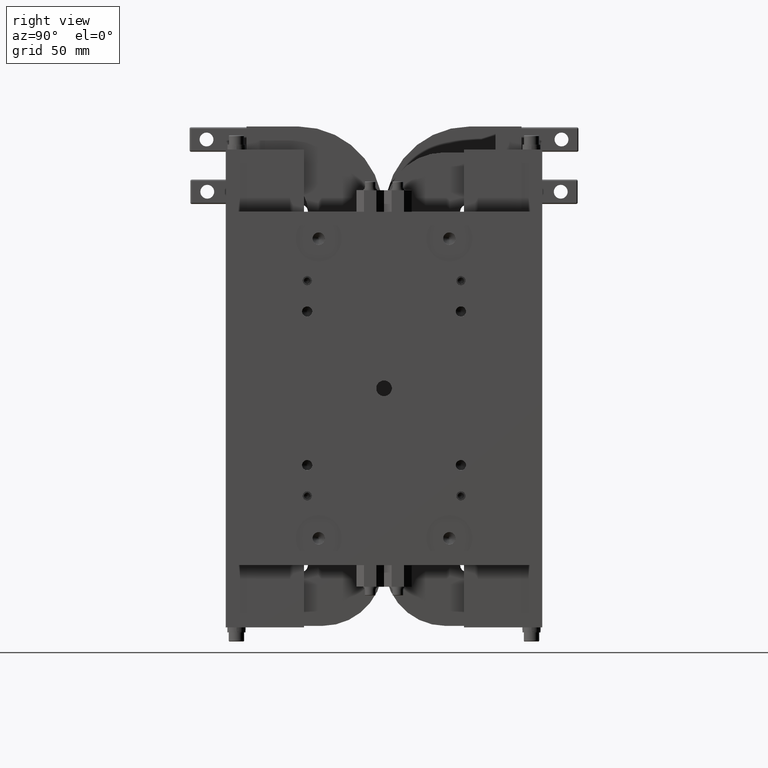
[diagram: clean part render]
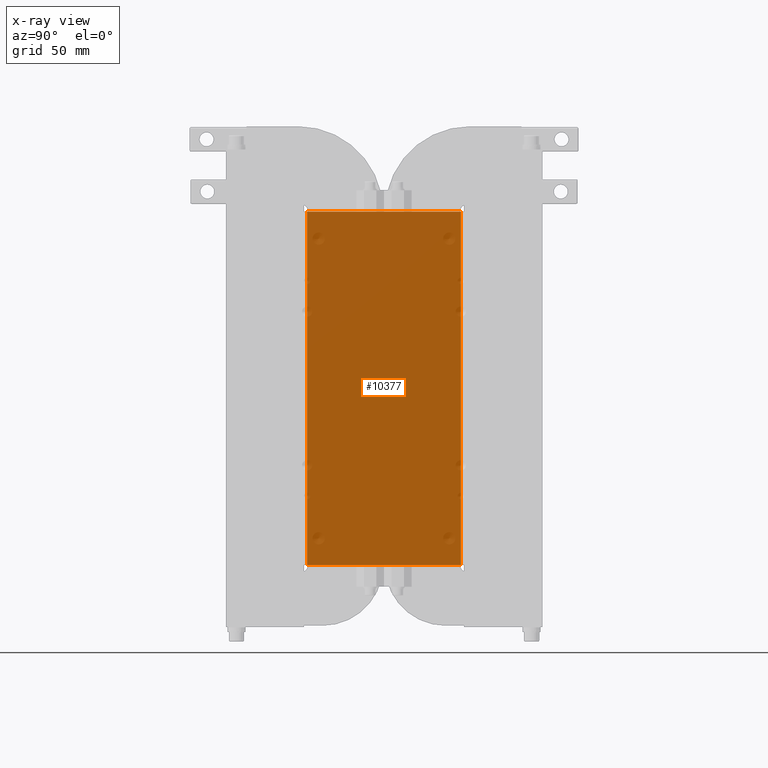
[diagram: x-ray — body ghosted, one internal face saturated and labeled with its STEP entity id]
A machine part, right view, then the same camera in x-ray: the body is ghosted and one INTERNAL B-rep face — a face not visible from any outside direction — is saturated and labeled: STEP entity #10377.
In plain terms, the highlighted planar face has unit normal (1, 0, 0).
Its self-contained STEP definition (entity closure, byte-faithful):
#1847=FACE_OUTER_BOUND('',#2450,.T.);
#2450=EDGE_LOOP('',(#7078,#7079,#7080,#7081));
#3357=LINE('',#15480,#4123);
#3361=LINE('',#15488,#4127);
#3367=LINE('',#15499,#4133);
#3368=LINE('',#15501,#4134);
#4123=VECTOR('',#12242,100.);
#4127=VECTOR('',#12248,230.);
#4133=VECTOR('',#12258,230.);
#4134=VECTOR('',#12261,100.);
#4889=VERTEX_POINT('',#15478);
#4890=VERTEX_POINT('',#15479);
#4893=VERTEX_POINT('',#15487);
#4896=VERTEX_POINT('',#15497);
#5807=EDGE_CURVE('',#4889,#4890,#3357,.T.);
#5811=EDGE_CURVE('',#4893,#4890,#3361,.T.);
#5817=EDGE_CURVE('',#4889,#4896,#3367,.T.);
#5818=EDGE_CURVE('',#4893,#4896,#3368,.T.);
#7078=ORIENTED_EDGE('',*,*,#5817,.T.);
#7079=ORIENTED_EDGE('',*,*,#5818,.F.);
#7080=ORIENTED_EDGE('',*,*,#5811,.T.);
#7081=ORIENTED_EDGE('',*,*,#5807,.F.);
#9576=PLANE('',#11007);
#10377=ADVANCED_FACE('',(#1847),#9576,.T.);
#11007=AXIS2_PLACEMENT_3D('',#15500,#12259,#12260);
#12242=DIRECTION('',(2.66453525910038E-16,-1.,0.));
#12248=DIRECTION('',(0.,0.,-1.));
#12258=DIRECTION('',(0.,0.,1.));
#12259=DIRECTION('center_axis',(1.,2.66453525910038E-16,0.));
#12260=DIRECTION('ref_axis',(0.,1.,0.));
#12261=DIRECTION('',(-2.66453525910038E-16,1.,0.));
#15478=CARTESIAN_POINT('',(80.,50.,-115.));
#15479=CARTESIAN_POINT('',(80.,-50.,-115.));
#15480=CARTESIAN_POINT('',(80.,-50.,-115.));
#15487=CARTESIAN_POINT('',(80.,-50.,115.));
#15488=CARTESIAN_POINT('',(80.,-50.,0.));
#15497=CARTESIAN_POINT('',(80.,50.,115.));
#15499=CARTESIAN_POINT('',(80.,50.,0.));
#15500=CARTESIAN_POINT('Origin',(80.,-50.,0.));
#15501=CARTESIAN_POINT('',(80.,-50.,115.));